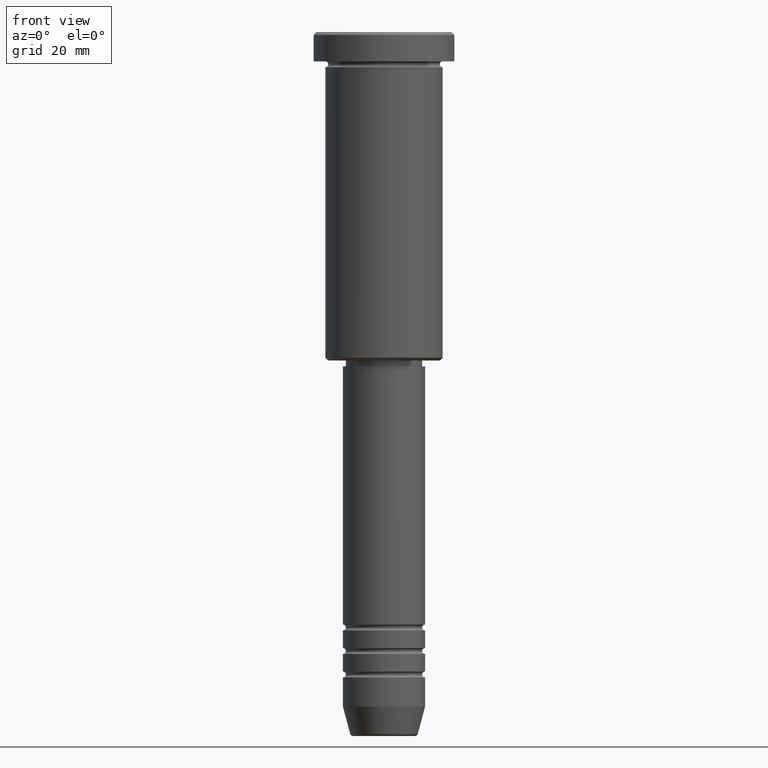
[diagram: clean part render]
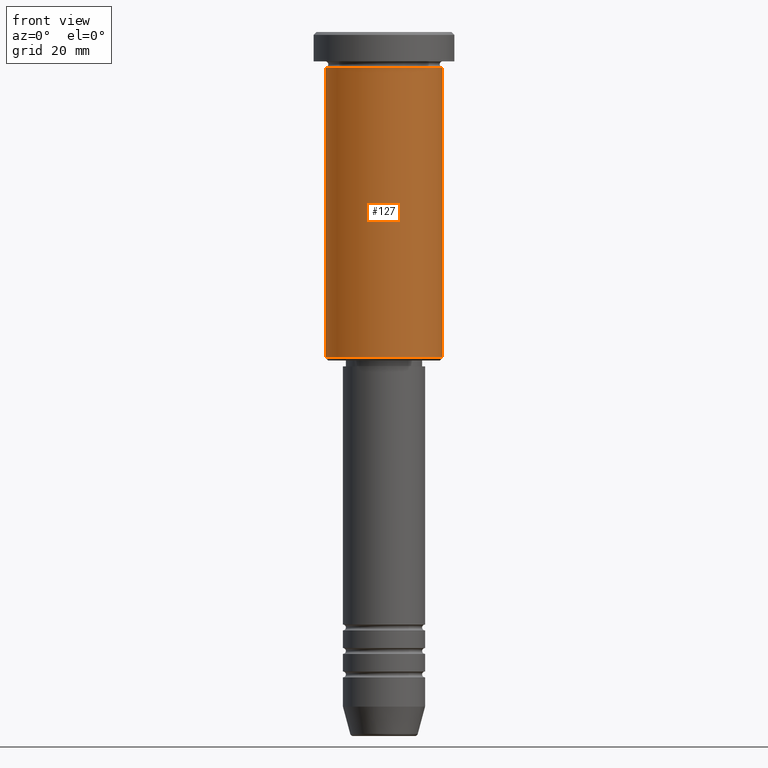
[diagram: same view with one face highlighted and labeled with its STEP entity id]
A machine part, front view. The second image highlights one B-rep face of the part: STEP entity #127.
In plain terms, the highlighted cylindrical surface (partial cylindrical patch) has radius 10 mm, axis along (-0, -0, 1).
Its self-contained STEP definition (entity closure, byte-faithful):
#2 = AXIS2_PLACEMENT_3D ( 'NONE', #473, #30, #97 ) ;
#17 = DIRECTION ( 'NONE',  ( -1.000000000000000000, 0.000000000000000000, 0.000000000000000000 ) ) ;
#26 = DIRECTION ( 'NONE',  ( -0.000000000000000000, -0.000000000000000000, 1.000000000000000000 ) ) ;
#30 = DIRECTION ( 'NONE',  ( -0.000000000000000000, -0.000000000000000000, 1.000000000000000000 ) ) ;
#61 = ORIENTED_EDGE ( 'NONE', *, *, #371, .T. ) ;
#81 = CARTESIAN_POINT ( 'NONE',  ( 9.999999999999998224, 0.000000000000000000, -55.49999999999999289 ) ) ;
#97 = DIRECTION ( 'NONE',  ( 1.000000000000000000, 0.000000000000000000, 0.000000000000000000 ) ) ;
#111 = VECTOR ( 'NONE', #134, 1000.000000000000000 ) ;
#127 = ADVANCED_FACE ( 'NONE', ( #837 ), #856, .T. ) ;
#134 = DIRECTION ( 'NONE',  ( -0.000000000000000000, -0.000000000000000000, 1.000000000000000000 ) ) ;
#164 = VERTEX_POINT ( 'NONE', #408 ) ;
#171 = AXIS2_PLACEMENT_3D ( 'NONE', #556, #26, #17 ) ;
#189 = CIRCLE ( 'NONE', #997, 10.00000000000000000 ) ;
#239 = ORIENTED_EDGE ( 'NONE', *, *, #482, .F. ) ;
#246 = CARTESIAN_POINT ( 'NONE',  ( 0.000000000000000000, 0.000000000000000000, -6.000000000000000000 ) ) ;
#251 = LINE ( 'NONE', #970, #111 ) ;
#290 = DIRECTION ( 'NONE',  ( -0.000000000000000000, -0.000000000000000000, 1.000000000000000000 ) ) ;
#317 = EDGE_CURVE ( 'NONE', #817, #164, #987, .T. ) ;
#357 = ORIENTED_EDGE ( 'NONE', *, *, #317, .T. ) ;
#371 = EDGE_CURVE ( 'NONE', #701, #817, #844, .T. ) ;
#406 = EDGE_LOOP ( 'NONE', ( #239, #61, #357, #619 ) ) ;
#408 = CARTESIAN_POINT ( 'NONE',  ( 10.00000000000000000, 0.000000000000000000, -6.000000000000000000 ) ) ;
#434 = CARTESIAN_POINT ( 'NONE',  ( -10.00000000000000000, 1.224646799147353256E-15, -6.000000000000000000 ) ) ;
#473 = CARTESIAN_POINT ( 'NONE',  ( 0.000000000000000000, 0.000000000000000000, 0.000000000000000000 ) ) ;
#482 = EDGE_CURVE ( 'NONE', #701, #1025, #251, .T. ) ;
#500 = DIRECTION ( 'NONE',  ( 1.000000000000000000, 0.000000000000000000, 0.000000000000000000 ) ) ;
#556 = CARTESIAN_POINT ( 'NONE',  ( 0.000000000000000000, 0.000000000000000000, -55.49999999999999289 ) ) ;
#601 = DIRECTION ( 'NONE',  ( -0.000000000000000000, -0.000000000000000000, 1.000000000000000000 ) ) ;
#619 = ORIENTED_EDGE ( 'NONE', *, *, #1113, .F. ) ;
#701 = VERTEX_POINT ( 'NONE', #846 ) ;
#790 = VECTOR ( 'NONE', #290, 1000.000000000000000 ) ;
#817 = VERTEX_POINT ( 'NONE', #81 ) ;
#837 = FACE_OUTER_BOUND ( 'NONE', #406, .T. ) ;
#844 = CIRCLE ( 'NONE', #171, 9.999999999999998224 ) ;
#846 = CARTESIAN_POINT ( 'NONE',  ( -9.999999999999998224, 1.224646799147353059E-15, -55.49999999999999289 ) ) ;
#856 = CYLINDRICAL_SURFACE ( 'NONE', #2, 9.999999999999998224 ) ;
#903 = CARTESIAN_POINT ( 'NONE',  ( 9.999999999999998224, 0.000000000000000000, 0.000000000000000000 ) ) ;
#970 = CARTESIAN_POINT ( 'NONE',  ( -9.999999999999998224, 1.224646799147353059E-15, 0.000000000000000000 ) ) ;
#987 = LINE ( 'NONE', #903, #790 ) ;
#997 = AXIS2_PLACEMENT_3D ( 'NONE', #246, #601, #500 ) ;
#1025 = VERTEX_POINT ( 'NONE', #434 ) ;
#1113 = EDGE_CURVE ( 'NONE', #1025, #164, #189, .T. ) ;